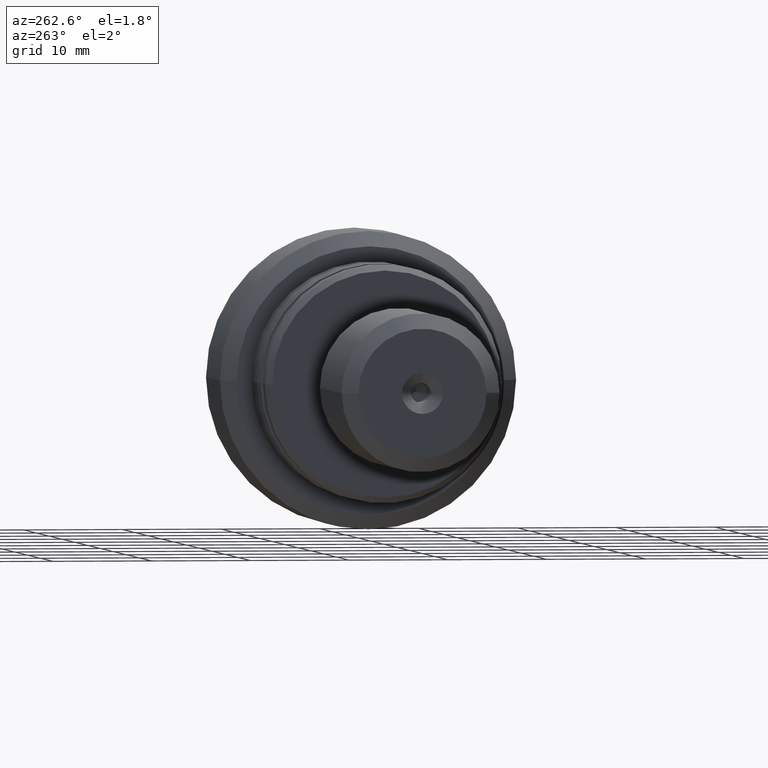
[diagram: clean part render]
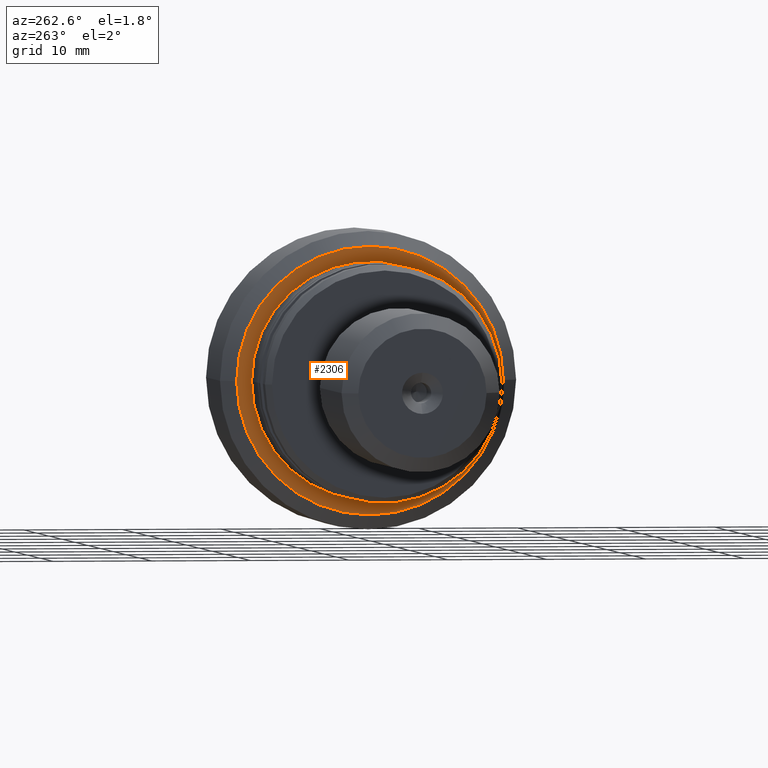
[diagram: same view with one face highlighted and labeled with its STEP entity id]
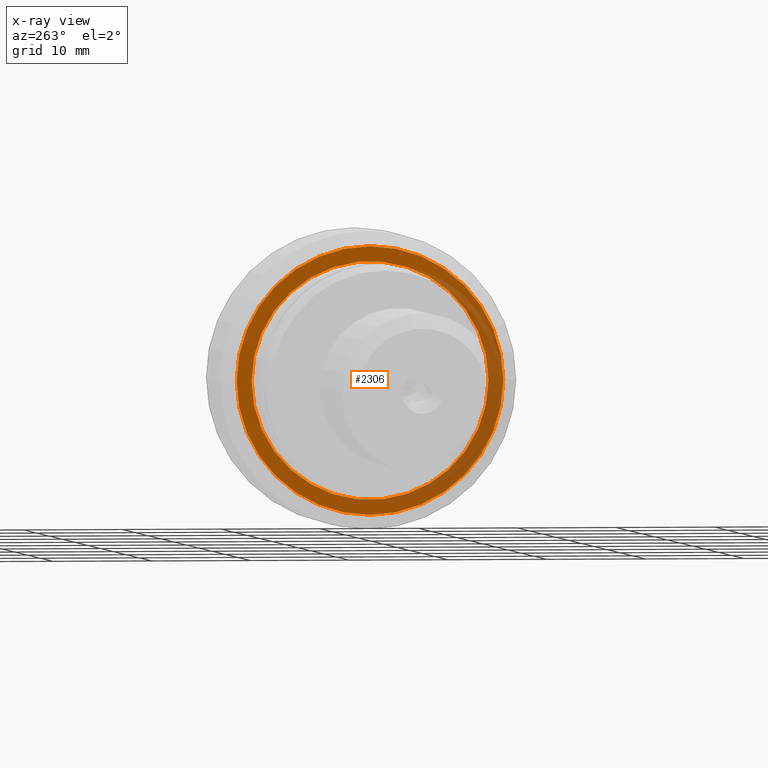
[diagram: x-ray of the same camera — body ghosted, the highlighted face saturated]
A machine part, auxiliary view. The second image highlights one B-rep face of the part: STEP entity #2306.
The next image is the same camera in x-ray: the body ghosted, the highlighted face saturated — about 28% of this face is hidden behind the body in this view.
In plain terms, the highlighted planar face has unit normal (-1, 0, 0).
Its self-contained STEP definition (entity closure, byte-faithful):
#27 = EDGE_CURVE ( 'NONE', #1326, #1380, #1336, .T. ) ;
#222 = DIRECTION ( 'NONE',  ( -1.000000000000000000, 6.415603269213350828E-16, -0.000000000000000000 ) ) ;
#280 = EDGE_CURVE ( 'NONE', #2105, #916, #1118, .T. ) ;
#427 = EDGE_CURVE ( 'NONE', #1380, #1326, #710, .T. ) ;
#619 = ORIENTED_EDGE ( 'NONE', *, *, #280, .F. ) ;
#629 = FACE_OUTER_BOUND ( 'NONE', #1417, .T. ) ;
#650 = CARTESIAN_POINT ( 'NONE',  ( -12.99999999999999112, -1.108617705555801452E-14, 0.000000000000000000 ) ) ;
#691 = CIRCLE ( 'NONE', #807, 11.99999999999999289 ) ;
#710 = CIRCLE ( 'NONE', #2098, 13.50000000000068034 ) ;
#715 = CARTESIAN_POINT ( 'NONE',  ( -12.99999999999998401, 11.99999999999998224, 1.469576158976823158E-15 ) ) ;
#807 = AXIS2_PLACEMENT_3D ( 'NONE', #1113, #927, #1495 ) ;
#916 = VERTEX_POINT ( 'NONE', #715 ) ;
#922 = EDGE_CURVE ( 'NONE', #916, #2105, #691, .T. ) ;
#927 = DIRECTION ( 'NONE',  ( -1.000000000000000000, 6.415603269213350828E-16, -0.000000000000000000 ) ) ;
#948 = AXIS2_PLACEMENT_3D ( 'NONE', #1545, #222, #2444 ) ;
#1004 = ORIENTED_EDGE ( 'NONE', *, *, #427, .T. ) ;
#1074 = DIRECTION ( 'NONE',  ( -6.415603269213350828E-16, -1.000000000000000000, 0.000000000000000000 ) ) ;
#1112 = ORIENTED_EDGE ( 'NONE', *, *, #922, .F. ) ;
#1113 = CARTESIAN_POINT ( 'NONE',  ( -12.99999999999999112, -1.108617705555801452E-14, 0.000000000000000000 ) ) ;
#1118 = CIRCLE ( 'NONE', #1267, 11.99999999999999289 ) ;
#1153 = CARTESIAN_POINT ( 'NONE',  ( -12.99999999999999822, -12.00000000000000355, 0.000000000000000000 ) ) ;
#1264 = EDGE_LOOP ( 'NONE', ( #619, #1112 ) ) ;
#1266 = DIRECTION ( 'NONE',  ( -6.424901762876739076E-16, -1.000000000000000000, 0.000000000000000000 ) ) ;
#1267 = AXIS2_PLACEMENT_3D ( 'NONE', #650, #1766, #1582 ) ;
#1326 = VERTEX_POINT ( 'NONE', #1927 ) ;
#1336 = CIRCLE ( 'NONE', #948, 13.50000000000068034 ) ;
#1380 = VERTEX_POINT ( 'NONE', #2164 ) ;
#1389 = DIRECTION ( 'NONE',  ( -1.000000000000000000, 6.415603269213350828E-16, 0.000000000000000000 ) ) ;
#1417 = EDGE_LOOP ( 'NONE', ( #1004, #1642 ) ) ;
#1471 = DIRECTION ( 'NONE',  ( -1.000000000000000000, 6.415603269213350828E-16, -0.000000000000000000 ) ) ;
#1495 = DIRECTION ( 'NONE',  ( -5.782411586589360597E-16, -1.000000000000000000, 0.000000000000000000 ) ) ;
#1545 = CARTESIAN_POINT ( 'NONE',  ( -12.99999999999999467, -1.108617705555801137E-14, 0.000000000000000000 ) ) ;
#1582 = DIRECTION ( 'NONE',  ( -5.782411586589360597E-16, -1.000000000000000000, 0.000000000000000000 ) ) ;
#1642 = ORIENTED_EDGE ( 'NONE', *, *, #27, .T. ) ;
#1766 = DIRECTION ( 'NONE',  ( -1.000000000000000000, 6.415603269213350828E-16, -0.000000000000000000 ) ) ;
#1773 = CARTESIAN_POINT ( 'NONE',  ( -13.00000000000000178, -12.00000000000000355, 0.000000000000000000 ) ) ;
#1905 = AXIS2_PLACEMENT_3D ( 'NONE', #1773, #1389, #1074 ) ;
#1927 = CARTESIAN_POINT ( 'NONE',  ( -13.00000000000000355, -13.50000000000069100, 1.745121688785019051E-15 ) ) ;
#2000 = FACE_BOUND ( 'NONE', #1264, .T. ) ;
#2098 = AXIS2_PLACEMENT_3D ( 'NONE', #2205, #1471, #1266 ) ;
#2105 = VERTEX_POINT ( 'NONE', #1153 ) ;
#2164 = CARTESIAN_POINT ( 'NONE',  ( -12.99999999999998579, 13.50000000000066969, 0.000000000000000000 ) ) ;
#2167 = PLANE ( 'NONE',  #1905 ) ;
#2205 = CARTESIAN_POINT ( 'NONE',  ( -12.99999999999999467, -1.108617705555801137E-14, 0.000000000000000000 ) ) ;
#2306 = ADVANCED_FACE ( 'NONE', ( #629, #2000 ), #2167, .T. ) ;
#2444 = DIRECTION ( 'NONE',  ( -6.424901762876739076E-16, -1.000000000000000000, 0.000000000000000000 ) ) ;